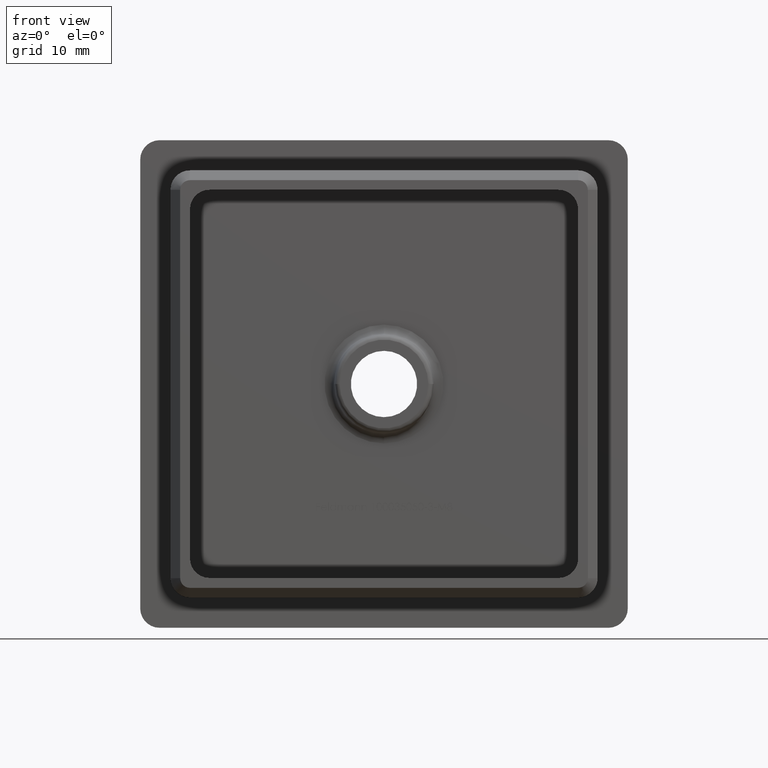
[diagram: clean part render]
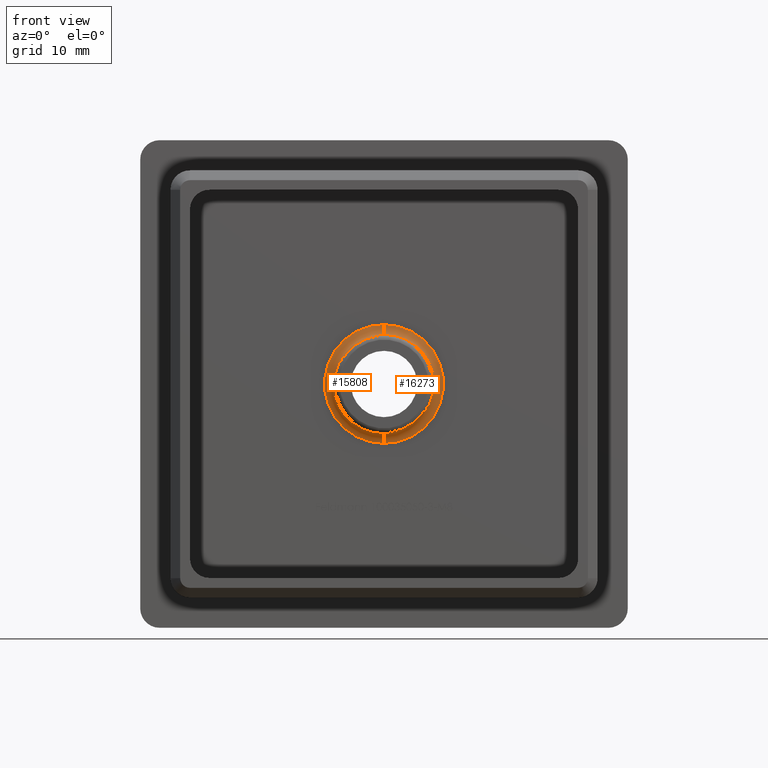
[diagram: same view with one multi-face feature highlighted, each face labeled with its STEP entity id]
A machine part, front view. The highlighted faces form ONE feature: a constant-radius fillet chain: 2 tangent blend faces with common blend radius 1 mm. The faces share edges in the B-rep.
Their STEP definitions:
[1] entity #16273 (Torus):
#245 = CIRCLE ( 'NONE', #1241, 6.091308501069263100 ) ;
#780 = ORIENTED_EDGE ( 'NONE', *, *, #6271, .F. ) ;
#1241 = AXIS2_PLACEMENT_3D ( 'NONE', #11297, #12972, #8792 ) ;
#1347 = CARTESIAN_POINT ( 'NONE',  ( 2.556028599677928600E-016, 0.0000000000000000000, 6.091308501069263100 ) ) ;
#1620 = CIRCLE ( 'NONE', #3662, 1.000000000000000000 ) ;
#1649 = ORIENTED_EDGE ( 'NONE', *, *, #2970, .F. ) ;
#1733 = DIRECTION ( 'NONE',  ( 1.224646799147352500E-016, 0.0000000000000000000, -1.000000000000000000 ) ) ;
#2437 = DIRECTION ( 'NONE',  ( 1.224646799147353500E-016, -1.000000000000000000, 0.0000000000000000000 ) ) ;
#2634 = ORIENTED_EDGE ( 'NONE', *, *, #8640, .F. ) ;
#2970 = EDGE_CURVE ( 'NONE', #12335, #8763, #6087, .T. ) ;
#3157 = CIRCLE ( 'NONE', #15933, 5.095113802977517800 ) ;
#3662 = AXIS2_PLACEMENT_3D ( 'NONE', #5631, #13065, #4143 ) ;
#3922 = CARTESIAN_POINT ( 'NONE',  ( 2.556028599677928600E-016, -0.9128442572523486300, 1.984021111433010100E-016 ) ) ;
#4123 = CARTESIAN_POINT ( 'NONE',  ( 2.556028599677928600E-016, -1.000000000000000000, 1.984021111433010100E-016 ) ) ;
#4143 = DIRECTION ( 'NONE',  ( 0.0000000000000000000, 0.0000000000000000000, 1.000000000000000000 ) ) ;
#4208 = EDGE_CURVE ( 'NONE', #11305, #15295, #7725, .T. ) ;
#4806 = CARTESIAN_POINT ( 'NONE',  ( 1.001573005813146500E-015, 0.0000000000000000000, -6.091308501069263100 ) ) ;
#5482 = DIRECTION ( 'NONE',  ( 0.0000000000000000000, 0.0000000000000000000, 1.000000000000000000 ) ) ;
#5631 = CARTESIAN_POINT ( 'NONE',  ( 2.556028599677928600E-016, -1.000000000000000000, 6.091308501069263100 ) ) ;
#5855 = DIRECTION ( 'NONE',  ( -1.000000000000000000, -1.276755198502429000E-016, 0.0000000000000000000 ) ) ;
#5897 = ORIENTED_EDGE ( 'NONE', *, *, #15003, .T. ) ;
#6087 = CIRCLE ( 'NONE', #18012, 1.000000000000000000 ) ;
#6271 = EDGE_CURVE ( 'NONE', #11143, #12335, #245, .T. ) ;
#7122 = CARTESIAN_POINT ( 'NONE',  ( 2.556028599677928600E-016, -0.9128442572523486300, 1.984021111433010100E-016 ) ) ;
#7250 = EDGE_LOOP ( 'NONE', ( #1649, #780, #5897, #10173, #2634 ) ) ;
#7365 = CARTESIAN_POINT ( 'NONE',  ( 9.405736733958655000E-016, -0.9128442572523486300, -5.095113802977517800 ) ) ;
#7725 = CIRCLE ( 'NONE', #17432, 5.095113802977517800 ) ;
#8045 = AXIS2_PLACEMENT_3D ( 'NONE', #4123, #12984, #5482 ) ;
#8574 = FACE_OUTER_BOUND ( 'NONE', #7250, .T. ) ;
#8640 = EDGE_CURVE ( 'NONE', #8763, #11305, #3157, .T. ) ;
#8763 = VERTEX_POINT ( 'NONE', #7365 ) ;
#8792 = DIRECTION ( 'NONE',  ( 0.0000000000000000000, 0.0000000000000000000, 1.000000000000000000 ) ) ;
#9697 = CARTESIAN_POINT ( 'NONE',  ( 5.095113802977517800, -0.9128442572523479700, 6.239714810107915300E-016 ) ) ;
#10173 = ORIENTED_EDGE ( 'NONE', *, *, #4208, .F. ) ;
#11143 = VERTEX_POINT ( 'NONE', #1347 ) ;
#11297 = CARTESIAN_POINT ( 'NONE',  ( 2.556028599677928600E-016, 0.0000000000000000000, 1.984021111433010100E-016 ) ) ;
#11305 = VERTEX_POINT ( 'NONE', #9697 ) ;
#11800 = TOROIDAL_SURFACE ( 'NONE', #8045, 6.091308501069263100, 1.000000000000000000 ) ;
#11899 = CARTESIAN_POINT ( 'NONE',  ( 2.556028599677929600E-016, -0.9128442572523486300, 5.095113802977517800 ) ) ;
#12034 = DIRECTION ( 'NONE',  ( 1.000000000000000000, -0.0000000000000000000, 1.224646799147353200E-016 ) ) ;
#12335 = VERTEX_POINT ( 'NONE', #4806 ) ;
#12972 = DIRECTION ( 'NONE',  ( 0.0000000000000000000, 1.000000000000000000, 0.0000000000000000000 ) ) ;
#12984 = DIRECTION ( 'NONE',  ( 0.0000000000000000000, 1.000000000000000000, 0.0000000000000000000 ) ) ;
#13065 = DIRECTION ( 'NONE',  ( -1.000000000000000000, 0.0000000000000000000, 0.0000000000000000000 ) ) ;
#13133 = CARTESIAN_POINT ( 'NONE',  ( 1.001573005813146500E-015, -1.000000000000000000, -6.091308501069263100 ) ) ;
#13228 = DIRECTION ( 'NONE',  ( 1.224646799147353500E-016, -1.000000000000000000, 0.0000000000000000000 ) ) ;
#15003 = EDGE_CURVE ( 'NONE', #11143, #15295, #1620, .T. ) ;
#15295 = VERTEX_POINT ( 'NONE', #11899 ) ;
#15707 = DIRECTION ( 'NONE',  ( -1.000000000000000000, -1.276755198502429000E-016, 0.0000000000000000000 ) ) ;
#15933 = AXIS2_PLACEMENT_3D ( 'NONE', #7122, #13228, #5855 ) ;
#16273 = ADVANCED_FACE ( 'NONE', ( #8574 ), #11800, .F. ) ;
#17432 = AXIS2_PLACEMENT_3D ( 'NONE', #3922, #2437, #15707 ) ;
#18012 = AXIS2_PLACEMENT_3D ( 'NONE', #13133, #12034, #1733 ) ;
[2] entity #15808 (Torus):
#97 = ORIENTED_EDGE ( 'NONE', *, *, #3111, .F. ) ;
#1347 = CARTESIAN_POINT ( 'NONE',  ( 2.556028599677928600E-016, 0.0000000000000000000, 6.091308501069263100 ) ) ;
#1620 = CIRCLE ( 'NONE', #3662, 1.000000000000000000 ) ;
#1733 = DIRECTION ( 'NONE',  ( 1.224646799147352500E-016, 0.0000000000000000000, -1.000000000000000000 ) ) ;
#2970 = EDGE_CURVE ( 'NONE', #12335, #8763, #6087, .T. ) ;
#3111 = EDGE_CURVE ( 'NONE', #15295, #14613, #14448, .T. ) ;
#3135 = ORIENTED_EDGE ( 'NONE', *, *, #4886, .F. ) ;
#3662 = AXIS2_PLACEMENT_3D ( 'NONE', #5631, #13065, #4143 ) ;
#4132 = AXIS2_PLACEMENT_3D ( 'NONE', #17970, #10572, #13581 ) ;
#4143 = DIRECTION ( 'NONE',  ( 0.0000000000000000000, 0.0000000000000000000, 1.000000000000000000 ) ) ;
#4543 = DIRECTION ( 'NONE',  ( 0.0000000000000000000, 1.000000000000000000, 0.0000000000000000000 ) ) ;
#4636 = DIRECTION ( 'NONE',  ( 1.224646799147353500E-016, -1.000000000000000000, 0.0000000000000000000 ) ) ;
#4806 = CARTESIAN_POINT ( 'NONE',  ( 1.001573005813146500E-015, 0.0000000000000000000, -6.091308501069263100 ) ) ;
#4886 = EDGE_CURVE ( 'NONE', #12335, #11143, #6779, .T. ) ;
#5631 = CARTESIAN_POINT ( 'NONE',  ( 2.556028599677928600E-016, -1.000000000000000000, 6.091308501069263100 ) ) ;
#5830 = CIRCLE ( 'NONE', #15211, 5.095113802977517800 ) ;
#6087 = CIRCLE ( 'NONE', #18012, 1.000000000000000000 ) ;
#6779 = CIRCLE ( 'NONE', #4132, 6.091308501069263100 ) ;
#7365 = CARTESIAN_POINT ( 'NONE',  ( 9.405736733958655000E-016, -0.9128442572523486300, -5.095113802977517800 ) ) ;
#7636 = TOROIDAL_SURFACE ( 'NONE', #10395, 6.091308501069263100, 1.000000000000000000 ) ;
#8763 = VERTEX_POINT ( 'NONE', #7365 ) ;
#9222 = CARTESIAN_POINT ( 'NONE',  ( 2.556028599677928600E-016, -1.000000000000000000, 1.984021111433010100E-016 ) ) ;
#10320 = ORIENTED_EDGE ( 'NONE', *, *, #15003, .F. ) ;
#10395 = AXIS2_PLACEMENT_3D ( 'NONE', #9222, #4543, #15108 ) ;
#10492 = CARTESIAN_POINT ( 'NONE',  ( 2.556028599677928600E-016, -0.9128442572523486300, 1.984021111433010100E-016 ) ) ;
#10572 = DIRECTION ( 'NONE',  ( 0.0000000000000000000, 1.000000000000000000, 0.0000000000000000000 ) ) ;
#11115 = EDGE_LOOP ( 'NONE', ( #3135, #18106, #11460, #97, #10320 ) ) ;
#11143 = VERTEX_POINT ( 'NONE', #1347 ) ;
#11460 = ORIENTED_EDGE ( 'NONE', *, *, #13818, .F. ) ;
#11604 = CARTESIAN_POINT ( 'NONE',  ( -5.095113802977517800, -0.9128442572523493000, 0.0000000000000000000 ) ) ;
#11899 = CARTESIAN_POINT ( 'NONE',  ( 2.556028599677929600E-016, -0.9128442572523486300, 5.095113802977517800 ) ) ;
#12034 = DIRECTION ( 'NONE',  ( 1.000000000000000000, -0.0000000000000000000, 1.224646799147353200E-016 ) ) ;
#12335 = VERTEX_POINT ( 'NONE', #4806 ) ;
#13065 = DIRECTION ( 'NONE',  ( -1.000000000000000000, 0.0000000000000000000, 0.0000000000000000000 ) ) ;
#13133 = CARTESIAN_POINT ( 'NONE',  ( 1.001573005813146500E-015, -1.000000000000000000, -6.091308501069263100 ) ) ;
#13581 = DIRECTION ( 'NONE',  ( 0.0000000000000000000, 0.0000000000000000000, 1.000000000000000000 ) ) ;
#13709 = DIRECTION ( 'NONE',  ( -1.000000000000000000, -1.276755198502429000E-016, 0.0000000000000000000 ) ) ;
#13818 = EDGE_CURVE ( 'NONE', #14613, #8763, #5830, .T. ) ;
#14448 = CIRCLE ( 'NONE', #16143, 5.095113802977517800 ) ;
#14613 = VERTEX_POINT ( 'NONE', #11604 ) ;
#15003 = EDGE_CURVE ( 'NONE', #11143, #15295, #1620, .T. ) ;
#15108 = DIRECTION ( 'NONE',  ( 0.0000000000000000000, 0.0000000000000000000, 1.000000000000000000 ) ) ;
#15211 = AXIS2_PLACEMENT_3D ( 'NONE', #10492, #4636, #17887 ) ;
#15295 = VERTEX_POINT ( 'NONE', #11899 ) ;
#15808 = ADVANCED_FACE ( 'NONE', ( #18331 ), #7636, .F. ) ;
#16143 = AXIS2_PLACEMENT_3D ( 'NONE', #18144, #18277, #13709 ) ;
#17887 = DIRECTION ( 'NONE',  ( -1.000000000000000000, -1.276755198502429000E-016, 0.0000000000000000000 ) ) ;
#17970 = CARTESIAN_POINT ( 'NONE',  ( 2.556028599677928600E-016, 0.0000000000000000000, 1.984021111433010100E-016 ) ) ;
#18012 = AXIS2_PLACEMENT_3D ( 'NONE', #13133, #12034, #1733 ) ;
#18106 = ORIENTED_EDGE ( 'NONE', *, *, #2970, .T. ) ;
#18144 = CARTESIAN_POINT ( 'NONE',  ( 2.556028599677928600E-016, -0.9128442572523486300, 1.984021111433010100E-016 ) ) ;
#18277 = DIRECTION ( 'NONE',  ( 1.224646799147353500E-016, -1.000000000000000000, 0.0000000000000000000 ) ) ;
#18331 = FACE_OUTER_BOUND ( 'NONE', #11115, .T. ) ;